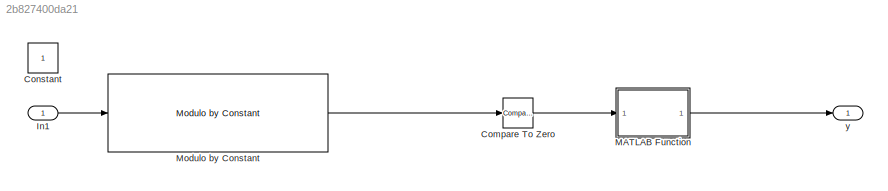
MODEL slx_2b827400da21
KIND model
CONFIG AbsTol = auto
CONFIG EnableMultiTasking = off
CONFIG FixedStep = auto
CONFIG MaxStep = auto
CONFIG MinStep = auto
CONFIG RelTol = 1e-3
CONFIG SampleTimeConstraint = Unconstrained
CONFIG SolverName = VariableStepAuto
CONFIG StartTime = 0.0
CONFIG StopTime = 10.0
BLOCK [Reference] Compare To Zero  REF=simulink/Logic and Bit
Operations/Compare
To Zero
  Ports = [1, 1]
  SourceBlock = simulink/Logic and Bit\nOperations/Compare\nTo Zero
  SourceProductBaseCode = SL
  SourceType = Compare To Zero
BLOCK [Constant] Constant
BLOCK [Inport] In1
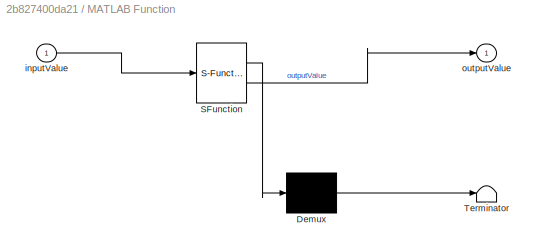
BLOCK [SubSystem] MATLAB Function
  ErrorFcn = Stateflow.Translate.translate
  PermitHierarchicalResolution = ExplicitOnly
  Ports = [1, 1]
  RequestExecContextInheritance = off
  SFBlockType = MATLAB Function
  TreatAsAtomicUnit = on
BLOCK [Demux] MATLAB Function/ Demux 
  Outputs = 1
  Ports = [1, 1]
BLOCK [S-Function] MATLAB Function/ SFunction 
  EnableBusSupport = on
  FunctionName = sf_sfun
  PortCounts = [1 2]
  Ports = [1, 2]
  SFcnIsStateOwnerBlock = off
  SFunctionDeploymentMode = off
  Tag = Stateflow S-Function 2
BLOCK [Terminator] MATLAB Function/ Terminator 
BLOCK [Inport] MATLAB Function/inputValue
BLOCK [Outport] MATLAB Function/outputValue
BLOCK [Reference] Modulo by Constant  REF=embmathops/Modulo by Constant
  Ports = [1, 1]
  SourceBlock = embmathops/Modulo by Constant
  SourceProductBaseCode = SL
  SourceType = fixed.system.ModByConstant
BLOCK [Outport] y
  OutDataTypeStr = string
LINE Compare To Zero:1 -> MATLAB Function:1
LINE In1:1 -> Modulo by Constant:1
LINE MATLAB Function:1 -> y:1
LINE Modulo by Constant:1 -> Compare To Zero:1
CHART MATLAB Function states=1 transitions=1
  STATE_LABEL 'eML_blk_kernel()'
  STATE_LABEL 'SCRIPT:\nfunction outputValue = fcn(inputValue)\n\n    if inputValue == 0\n        outputValue = "odd"; % Use a numeric value to represent \'even\'\n    else\n        outputValue = "even"; % Use a numeric value to represent \'odd\'\n    end\nend\n'
CHART  states=0 transitions=0
